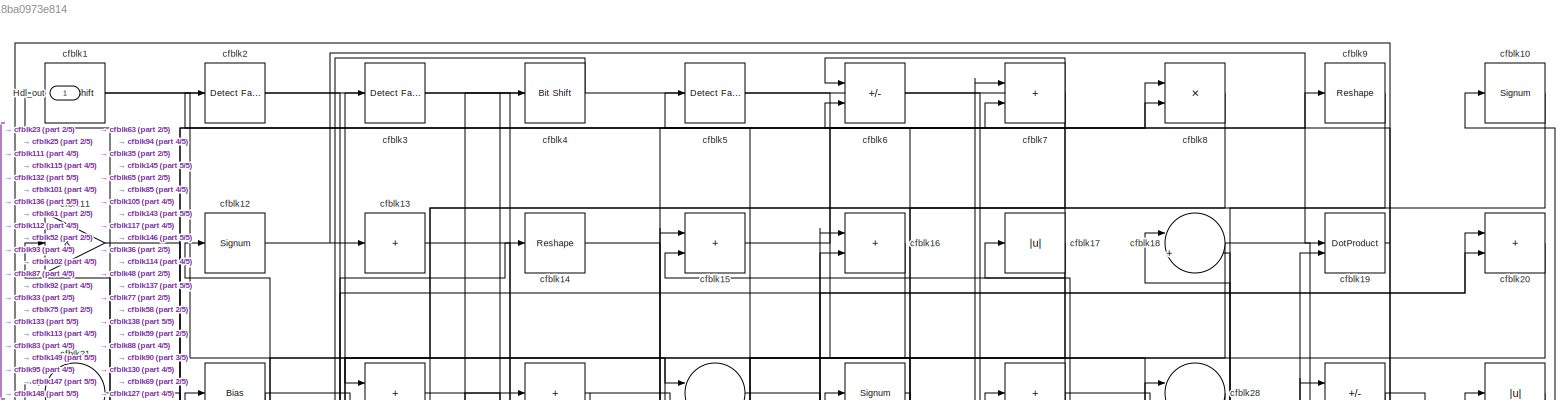
[diagram: root canvas - part 1/5, full width, top band]
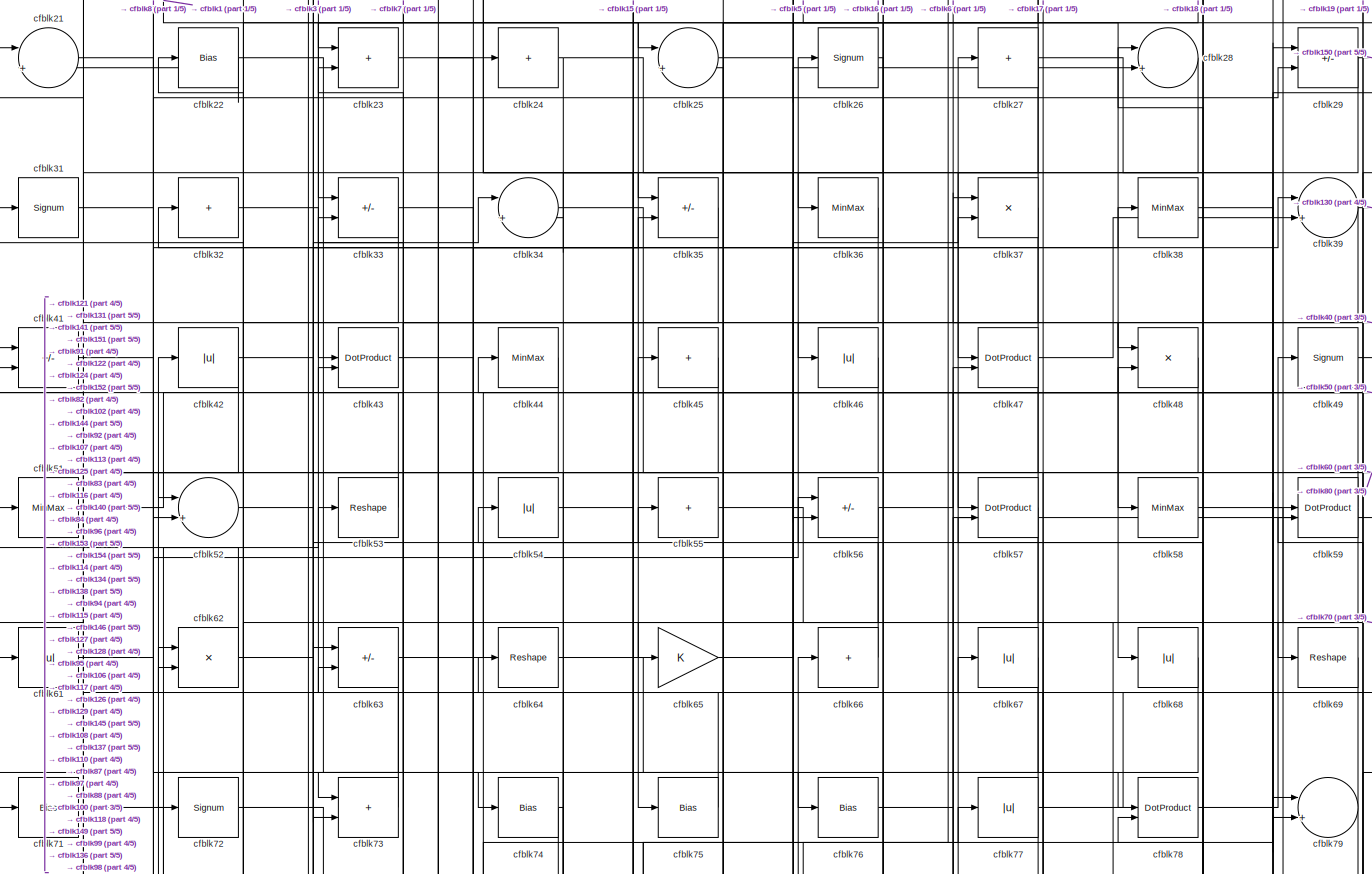
[diagram: root canvas - part 2/5, full width, top band]
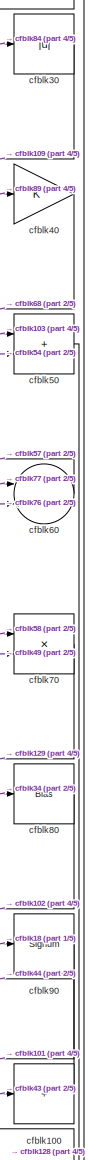
[diagram: root canvas - part 3/5, middle right region]
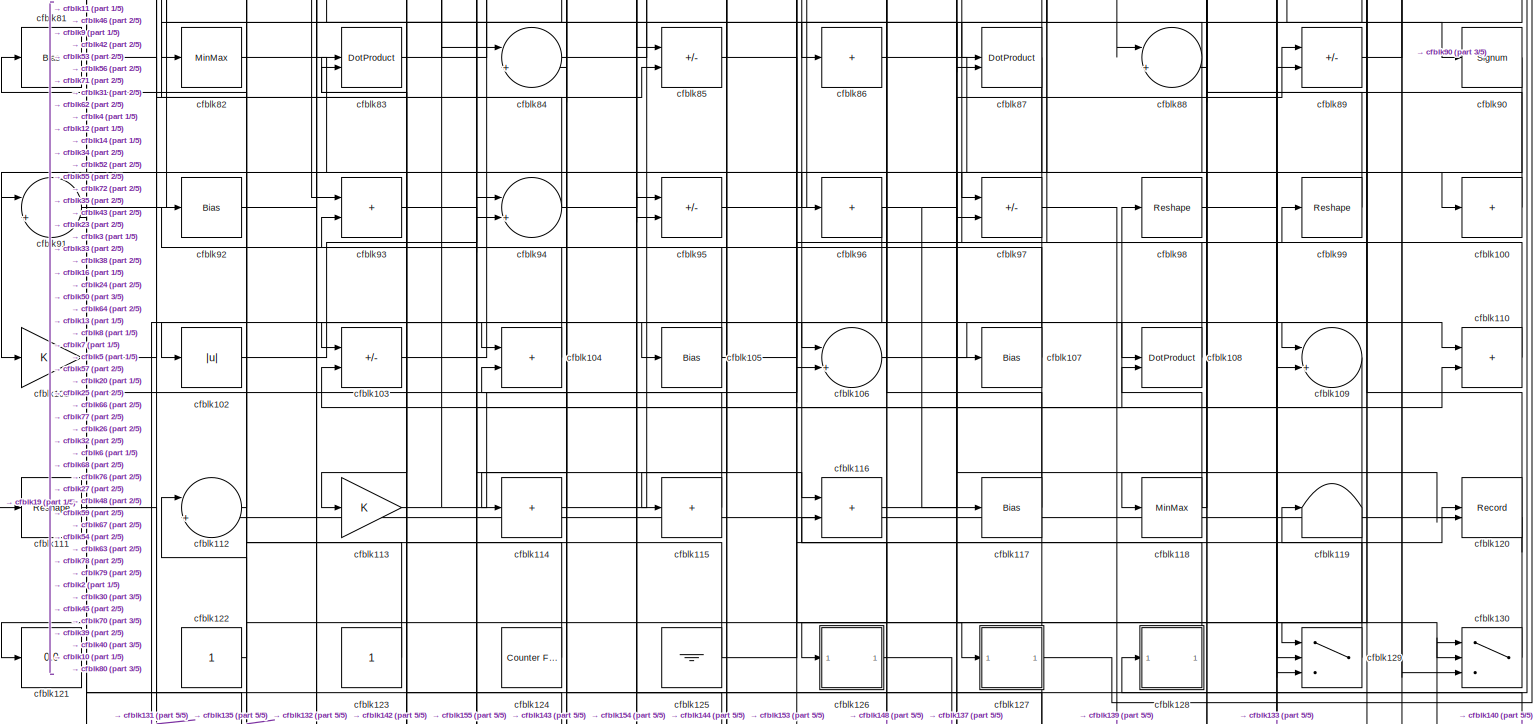
[diagram: root canvas - part 4/5, full width, middle band]
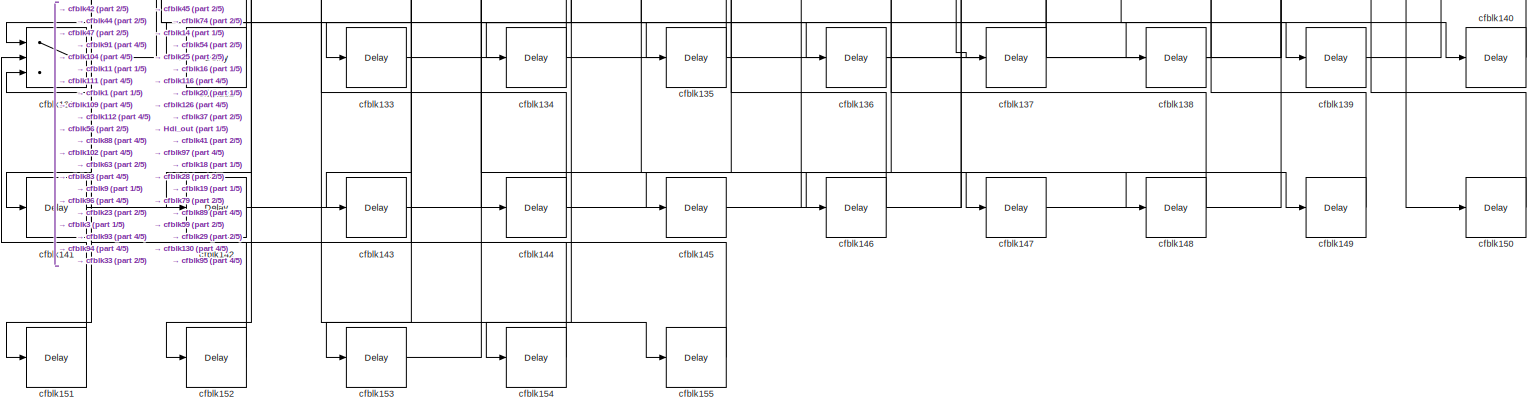
[diagram: root canvas - part 5/5, full width, bottom band]
MODEL slx_18ba0973e814
KIND model
CONFIG AbsTol = auto
CONFIG EnableMultiTasking = off
CONFIG FixedStep = auto
CONFIG MaxStep = auto
CONFIG MinStep = auto
CONFIG RelTol = 1e-3
CONFIG SampleTimeConstraint = Unconstrained
CONFIG SolverName = VariableStepAuto
CONFIG StartTime = 0.0
CONFIG StopTime = 10.0
BLOCK [Outport] Hdl_out
  OutDataTypeStr = uint8
BLOCK [ArithShift] cfblk1
  BitShiftNumber = 8
  InputPortMap = u0
BLOCK [Signum] cfblk10
BLOCK [Sum] cfblk100
  IconShape = rectangular
  Inputs = +
  OutDataTypeStr = uint8
BLOCK [Gain] cfblk101
  OutDataTypeStr = uint8
BLOCK [Abs] cfblk102
  OutDataTypeStr = uint8
  SaturateOnIntegerOverflow = off
BLOCK [Sum] cfblk103
  IconShape = rectangular
  Inputs = +-
  OutDataTypeStr = uint8
BLOCK [Sum] cfblk104
  IconShape = rectangular
  OutDataTypeStr = uint8
BLOCK [Bias] cfblk105
  Bias = 0.0
  SaturateOnIntegerOverflow = off
BLOCK [Sum] cfblk106
  Inputs = |++
  OutDataTypeStr = uint8
BLOCK [Bias] cfblk107
  Bias = 0.0
  SaturateOnIntegerOverflow = off
BLOCK [DotProduct] cfblk108
  OutDataTypeStr = uint8
BLOCK [Sum] cfblk109
  Inputs = |++
  OutDataTypeStr = uint8
BLOCK [Gain] cfblk11
  OutDataTypeStr = uint8
BLOCK [Sum] cfblk110
  IconShape = rectangular
  OutDataTypeStr = uint8
BLOCK [Reshape] cfblk111
BLOCK [Sum] cfblk112
  Inputs = |++
  OutDataTypeStr = uint8
BLOCK [Gain] cfblk113
  OutDataTypeStr = uint8
BLOCK [Sum] cfblk114
  IconShape = rectangular
  Inputs = +
  OutDataTypeStr = uint8
BLOCK [Sum] cfblk115
  IconShape = rectangular
  Inputs = +
  OutDataTypeStr = uint8
BLOCK [Sum] cfblk116
  IconShape = rectangular
  OutDataTypeStr = uint8
BLOCK [Bias] cfblk117
  Bias = 0.0
  SaturateOnIntegerOverflow = off
BLOCK [MinMax] cfblk118
  OutDataTypeStr = uint8
BLOCK [Terminator] cfblk119
BLOCK [Signum] cfblk12
BLOCK [Record] cfblk120
  CompatibilityTag = XY
  FileSettingsInternal = {"entries":[{"content":{"excelSettings":{"content":{},"type":"Streamout.ExcelSettings"}},"type":"Streamout.FileSettingStorage","uuid":""}],"packageUris":["http:\/\/schema.mathworks.com\/mf0\/streamout_blocks\/R2020a"],"version":"1.0"}
  Layout = [1 1]
  SignalsInternal = {"entries":[{"content":{"signals":[{"content":{"blockPath":[],"dimensions":[1],"domain":"","lineColor":"#a2142f","plots":[1],"port":1,"signalID":59982,"signalName":"cfblk125"},"type":"RecordBlkView.Signal","uuid":""},{"content":{"blockPath":[],"dimensions":[1],"domain":"","lineColor":"#139fff","plots":[1],"port":2,"signalID":59985,"signalName":"cfblk96"},"type":"RecordBlkView.Signal","uuid":""}]},...<+143ch>
  VisualizationBindings = {"xyplotplugin":{"info":[{"series":[{"bindingParametersList":[{"parameter":"X-Axis","signalID":59982,"signalName":"cfblk125"},{"parameter":"Y-Axis","signalID":59985,"signalName":"cfblk96"}],"seriesID":18060}],"subplotID":1}]}}
  st = -1
BLOCK [Display] cfblk121
  Decimation = 1
BLOCK [Constant] cfblk122
  OutDataTypeStr = uint8
  SampleTime = -1
BLOCK [Constant] cfblk123
  OutDataTypeStr = uint8
  SampleTime = -1
BLOCK [Reference] cfblk124  REF=hdlsllib/Sources/Counter
Free-Running
  SourceBlock = hdlsllib/Sources/Counter\nFree-Running
  SourceType = Counter Free-Running
BLOCK [Ground] cfblk125
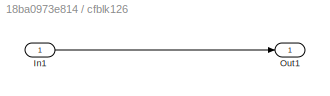
BLOCK [SubSystem] cfblk126
  LibrarySourceBlock = hdlsllib/Ports &\nSubsystems/Subsystem
BLOCK [Inport] cfblk126/In1
BLOCK [Outport] cfblk126/Out1
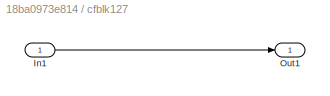
BLOCK [SubSystem] cfblk127
  LibrarySourceBlock = hdlsllib/Ports &\nSubsystems/Subsystem
BLOCK [Inport] cfblk127/In1
BLOCK [Outport] cfblk127/Out1
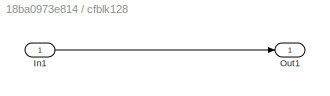
BLOCK [SubSystem] cfblk128
  LibrarySourceBlock = hdlsllib/Ports &\nSubsystems/Subsystem
BLOCK [Inport] cfblk128/In1
BLOCK [Outport] cfblk128/Out1
BLOCK [Switch] cfblk129
  InputSameDT = off
  OutDataTypeStr = uint8
  SaturateOnIntegerOverflow = off
BLOCK [Sum] cfblk13
  IconShape = rectangular
  Inputs = +
  OutDataTypeStr = uint8
BLOCK [Switch] cfblk130
  InputSameDT = off
  OutDataTypeStr = uint8
  SaturateOnIntegerOverflow = off
BLOCK [Switch] cfblk131
  InputSameDT = off
  OutDataTypeStr = uint8
  SaturateOnIntegerOverflow = off
BLOCK [Delay] cfblk132
  InputPortMap = u0
  SampleTime = 1
BLOCK [Delay] cfblk133
  InputPortMap = u0
  SampleTime = 1
BLOCK [Delay] cfblk134
  InputPortMap = u0
  SampleTime = 1
BLOCK [Delay] cfblk135
  InputPortMap = u0
  SampleTime = 1
BLOCK [Delay] cfblk136
  InputPortMap = u0
  SampleTime = 1
BLOCK [Delay] cfblk137
  InputPortMap = u0
  SampleTime = 1
BLOCK [Delay] cfblk138
  InputPortMap = u0
  SampleTime = 1
BLOCK [Delay] cfblk139
  InputPortMap = u0
  SampleTime = 1
BLOCK [Reshape] cfblk14
BLOCK [Delay] cfblk140
  InputPortMap = u0
  SampleTime = 1
BLOCK [Delay] cfblk141
  InputPortMap = u0
  SampleTime = 1
BLOCK [Delay] cfblk142
  InputPortMap = u0
  SampleTime = 1
BLOCK [Delay] cfblk143
  InputPortMap = u0
  SampleTime = 1
BLOCK [Delay] cfblk144
  InputPortMap = u0
  SampleTime = 1
BLOCK [Delay] cfblk145
  InputPortMap = u0
  SampleTime = 1
BLOCK [Delay] cfblk146
  InputPortMap = u0
  SampleTime = 1
BLOCK [Delay] cfblk147
  InputPortMap = u0
  SampleTime = 1
BLOCK [Delay] cfblk148
  InputPortMap = u0
  SampleTime = 1
BLOCK [Delay] cfblk149
  InputPortMap = u0
  SampleTime = 1
BLOCK [Sum] cfblk15
  IconShape = rectangular
  OutDataTypeStr = uint8
BLOCK [Delay] cfblk150
  InputPortMap = u0
  SampleTime = 1
BLOCK [Delay] cfblk151
  InputPortMap = u0
  SampleTime = 1
BLOCK [Delay] cfblk152
  InputPortMap = u0
  SampleTime = 1
BLOCK [Delay] cfblk153
  InputPortMap = u0
  SampleTime = 1
BLOCK [Delay] cfblk154
  InputPortMap = u0
  SampleTime = 1
BLOCK [Delay] cfblk155
  InputPortMap = u0
  SampleTime = 1
BLOCK [Sum] cfblk16
  IconShape = rectangular
  OutDataTypeStr = uint8
BLOCK [Abs] cfblk17
  OutDataTypeStr = uint8
  SaturateOnIntegerOverflow = off
BLOCK [Sum] cfblk18
  Inputs = |++
  OutDataTypeStr = uint8
BLOCK [DotProduct] cfblk19
  OutDataTypeStr = uint8
BLOCK [Reference] cfblk2  REF=hdlsllib/Logic and Bit
Operations/Detect Fall
Nonpositive
  SourceBlock = hdlsllib/Logic and Bit\nOperations/Detect Fall\nNonpositive
  SourceType = Detect Fall Nonpositive
BLOCK [Sum] cfblk20
  IconShape = rectangular
  OutDataTypeStr = uint8
BLOCK [Sum] cfblk21
  Inputs = |++
  OutDataTypeStr = uint8
BLOCK [Bias] cfblk22
  Bias = 0.0
  SaturateOnIntegerOverflow = off
BLOCK [Sum] cfblk23
  IconShape = rectangular
  OutDataTypeStr = uint8
BLOCK [Sum] cfblk24
  IconShape = rectangular
  Inputs = +
  OutDataTypeStr = uint8
BLOCK [Sum] cfblk25
  Inputs = |++
  OutDataTypeStr = uint8
BLOCK [Signum] cfblk26
BLOCK [Sum] cfblk27
  IconShape = rectangular
  Inputs = +
  OutDataTypeStr = uint8
BLOCK [Sum] cfblk28
  Inputs = |++
  OutDataTypeStr = uint8
BLOCK [Sum] cfblk29
  IconShape = rectangular
  Inputs = +-
  OutDataTypeStr = uint8
BLOCK [Reference] cfblk3  REF=hdlsllib/Logic and Bit
Operations/Detect Fall
Negative
  SourceBlock = hdlsllib/Logic and Bit\nOperations/Detect Fall\nNegative
  SourceType = Detect Fall Negative
BLOCK [Abs] cfblk30
  OutDataTypeStr = uint8
  SaturateOnIntegerOverflow = off
BLOCK [Signum] cfblk31
BLOCK [Sum] cfblk32
  IconShape = rectangular
  Inputs = +
  OutDataTypeStr = uint8
BLOCK [Sum] cfblk33
  IconShape = rectangular
  Inputs = +-
  OutDataTypeStr = uint8
BLOCK [Sum] cfblk34
  Inputs = |++
  OutDataTypeStr = uint8
BLOCK [Sum] cfblk35
  IconShape = rectangular
  Inputs = +-
  OutDataTypeStr = uint8
BLOCK [MinMax] cfblk36
  OutDataTypeStr = uint8
BLOCK [Product] cfblk37
  Inputs = */
  OutDataTypeStr = uint8
  RndMeth = Zero
  SaturateOnIntegerOverflow = on
BLOCK [MinMax] cfblk38
  OutDataTypeStr = uint8
BLOCK [Sum] cfblk39
  Inputs = |++
  OutDataTypeStr = uint8
BLOCK [Reference] cfblk4  REF=hdlsllib/Logic and Bit
Operations/Bit Shift
  SourceBlock = hdlsllib/Logic and Bit\nOperations/Bit Shift
  SourceType = Bit Shift
BLOCK [Gain] cfblk40
  OutDataTypeStr = uint8
BLOCK [Sum] cfblk41
  IconShape = rectangular
  Inputs = +-
  OutDataTypeStr = uint8
BLOCK [Abs] cfblk42
  OutDataTypeStr = uint8
  SaturateOnIntegerOverflow = off
BLOCK [DotProduct] cfblk43
  OutDataTypeStr = uint8
BLOCK [MinMax] cfblk44
  OutDataTypeStr = uint8
BLOCK [Sum] cfblk45
  IconShape = rectangular
  Inputs = +
  OutDataTypeStr = uint8
BLOCK [Abs] cfblk46
  OutDataTypeStr = uint8
  SaturateOnIntegerOverflow = off
BLOCK [DotProduct] cfblk47
  OutDataTypeStr = uint8
BLOCK [Product] cfblk48
  Inputs = */
  OutDataTypeStr = uint8
  RndMeth = Zero
  SaturateOnIntegerOverflow = on
BLOCK [Signum] cfblk49
BLOCK [Reference] cfblk5  REF=hdlsllib/Logic and Bit
Operations/Detect Fall
Nonpositive
  SourceBlock = hdlsllib/Logic and Bit\nOperations/Detect Fall\nNonpositive
  SourceType = Detect Fall Nonpositive
BLOCK [Sum] cfblk50
  IconShape = rectangular
  OutDataTypeStr = uint8
BLOCK [MinMax] cfblk51
  OutDataTypeStr = uint8
BLOCK [Sum] cfblk52
  Inputs = |++
  OutDataTypeStr = uint8
BLOCK [Reshape] cfblk53
BLOCK [Abs] cfblk54
  OutDataTypeStr = uint8
  SaturateOnIntegerOverflow = off
BLOCK [Sum] cfblk55
  IconShape = rectangular
  Inputs = +
  OutDataTypeStr = uint8
BLOCK [Sum] cfblk56
  IconShape = rectangular
  Inputs = +-
  OutDataTypeStr = uint8
BLOCK [DotProduct] cfblk57
  OutDataTypeStr = uint8
BLOCK [MinMax] cfblk58
  OutDataTypeStr = uint8
BLOCK [DotProduct] cfblk59
  OutDataTypeStr = uint8
BLOCK [Sum] cfblk6
  IconShape = rectangular
  Inputs = +-
  OutDataTypeStr = uint8
BLOCK [Sum] cfblk60
  Inputs = |++
  OutDataTypeStr = uint8
BLOCK [Abs] cfblk61
  OutDataTypeStr = uint8
  SaturateOnIntegerOverflow = off
BLOCK [Product] cfblk62
  Inputs = */
  OutDataTypeStr = uint8
  RndMeth = Zero
  SaturateOnIntegerOverflow = on
BLOCK [Sum] cfblk63
  IconShape = rectangular
  Inputs = +-
  OutDataTypeStr = uint8
BLOCK [Reshape] cfblk64
BLOCK [Gain] cfblk65
  OutDataTypeStr = uint8
BLOCK [Sum] cfblk66
  IconShape = rectangular
  Inputs = +
  OutDataTypeStr = uint8
BLOCK [Abs] cfblk67
  OutDataTypeStr = uint8
  SaturateOnIntegerOverflow = off
BLOCK [Abs] cfblk68
  OutDataTypeStr = uint8
  SaturateOnIntegerOverflow = off
BLOCK [Reshape] cfblk69
BLOCK [Sum] cfblk7
  IconShape = rectangular
  OutDataTypeStr = uint8
BLOCK [Product] cfblk70
  Inputs = */
  OutDataTypeStr = uint8
  RndMeth = Zero
  SaturateOnIntegerOverflow = on
BLOCK [Bias] cfblk71
  Bias = 0.0
  SaturateOnIntegerOverflow = off
BLOCK [Signum] cfblk72
BLOCK [Sum] cfblk73
  IconShape = rectangular
  OutDataTypeStr = uint8
BLOCK [Bias] cfblk74
  Bias = 0.0
  SaturateOnIntegerOverflow = off
BLOCK [Bias] cfblk75
  Bias = 0.0
  SaturateOnIntegerOverflow = off
BLOCK [Bias] cfblk76
  Bias = 0.0
  SaturateOnIntegerOverflow = off
BLOCK [Abs] cfblk77
  OutDataTypeStr = uint8
  SaturateOnIntegerOverflow = off
BLOCK [DotProduct] cfblk78
  OutDataTypeStr = uint8
BLOCK [Sum] cfblk79
  Inputs = |++
  OutDataTypeStr = uint8
BLOCK [Product] cfblk8
  Inputs = */
  OutDataTypeStr = uint8
  RndMeth = Zero
  SaturateOnIntegerOverflow = on
BLOCK [Bias] cfblk80
  Bias = 0.0
  SaturateOnIntegerOverflow = off
BLOCK [Bias] cfblk81
  Bias = 0.0
  SaturateOnIntegerOverflow = off
BLOCK [MinMax] cfblk82
  OutDataTypeStr = uint8
BLOCK [DotProduct] cfblk83
  OutDataTypeStr = uint8
BLOCK [Sum] cfblk84
  Inputs = |++
  OutDataTypeStr = uint8
BLOCK [Sum] cfblk85
  IconShape = rectangular
  Inputs = +-
  OutDataTypeStr = uint8
BLOCK [Sum] cfblk86
  IconShape = rectangular
  Inputs = +
  OutDataTypeStr = uint8
BLOCK [DotProduct] cfblk87
  OutDataTypeStr = uint8
BLOCK [Sum] cfblk88
  Inputs = |++
  OutDataTypeStr = uint8
BLOCK [Sum] cfblk89
  IconShape = rectangular
  Inputs = +-
  OutDataTypeStr = uint8
BLOCK [Reshape] cfblk9
BLOCK [Signum] cfblk90
BLOCK [Sum] cfblk91
  Inputs = |++
  OutDataTypeStr = uint8
BLOCK [Bias] cfblk92
  Bias = 0.0
  SaturateOnIntegerOverflow = off
BLOCK [Sum] cfblk93
  IconShape = rectangular
  OutDataTypeStr = uint8
BLOCK [Sum] cfblk94
  Inputs = |++
  OutDataTypeStr = uint8
BLOCK [Sum] cfblk95
  IconShape = rectangular
  Inputs = +-
  OutDataTypeStr = uint8
BLOCK [Sum] cfblk96
  IconShape = rectangular
  Inputs = +
  OutDataTypeStr = uint8
BLOCK [Sum] cfblk97
  IconShape = rectangular
  Inputs = +-
  OutDataTypeStr = uint8
BLOCK [Reshape] cfblk98
BLOCK [Reshape] cfblk99
NET cfblk100:1 -> cfblk44:1, cfblk57:2
LINE cfblk101:1 -> cfblk9:1
NET cfblk102:1 -> cfblk155:1, cfblk20:2, cfblk38:1
LINE cfblk103:1 -> cfblk50:1
LINE cfblk104:1 -> cfblk83:1
NET cfblk105:1 -> cfblk20:1, cfblk93:2
LINE cfblk106:1 -> cfblk108:1
LINE cfblk107:1 -> cfblk92:1
LINE cfblk108:1 -> cfblk27:1
NET cfblk109:1 -> cfblk103:2, cfblk142:1
LINE cfblk10:1 -> cfblk88:2
LINE cfblk110:1 -> cfblk67:1
LINE cfblk111:1 -> cfblk135:1
LINE cfblk112:1 -> cfblk12:1
NET cfblk113:1 -> cfblk110:2, cfblk4:1, cfblk99:1
NET cfblk114:1 -> cfblk64:1, cfblk7:1
LINE cfblk115:1 -> cfblk11:1
LINE cfblk116:1 -> cfblk89:1
NET cfblk117:1 -> cfblk32:1, cfblk6:2
NET cfblk118:1 -> cfblk78:2, cfblk98:1
LINE cfblk11:1 -> cfblk136:1
LINE cfblk122:1 -> cfblk62:1
LINE cfblk123:1 -> cfblk81:1
LINE cfblk124:1 -> cfblk31:1
NET cfblk125:1 -> cfblk108:2, cfblk120:1, cfblk43:2
LINE cfblk126/In1:1 -> cfblk126/Out1:1
LINE cfblk126:1 -> cfblk137:1
LINE cfblk127/In1:1 -> cfblk127/Out1:1
LINE cfblk127:1 -> cfblk10:1
LINE cfblk128/In1:1 -> cfblk128/Out1:1
LINE cfblk128:1 -> cfblk66:1
LINE cfblk129:1 -> cfblk119:1
NET cfblk12:1 -> cfblk19:1, cfblk87:2
NET cfblk130:1 -> cfblk112:2, cfblk2:1, cfblk45:1
LINE cfblk131:1 -> cfblk104:1
LINE cfblk132:1 -> cfblk1:1
LINE cfblk133:1 -> cfblk89:2
LINE cfblk134:1 -> cfblk33:2
LINE cfblk135:1 -> cfblk104:2
LINE cfblk136:1 -> cfblk79:1
NET cfblk137:1 -> Hdl_out:1, cfblk41:2
LINE cfblk138:1 -> cfblk18:2
LINE cfblk139:1 -> cfblk130:1
LINE cfblk13:1 -> cfblk85:1
LINE cfblk140:1 -> cfblk95:1
LINE cfblk141:1 -> cfblk37:1
LINE cfblk142:1 -> cfblk112:1
LINE cfblk143:1 -> cfblk16:2
LINE cfblk144:1 -> cfblk63:1
LINE cfblk145:1 -> cfblk47:2
LINE cfblk146:1 -> cfblk25:2
LINE cfblk147:1 -> cfblk19:2
LINE cfblk148:1 -> cfblk116:2
LINE cfblk149:1 -> cfblk28:1
NET cfblk14:1 -> cfblk147:1, cfblk148:1
LINE cfblk150:1 -> cfblk59:2
LINE cfblk151:1 -> cfblk131:2
LINE cfblk152:1 -> cfblk131:3
LINE cfblk153:1 -> cfblk94:1
LINE cfblk154:1 -> cfblk83:2
LINE cfblk155:1 -> cfblk91:2
LINE cfblk15:1 -> cfblk7:2
LINE cfblk16:1 -> cfblk33:1
NET cfblk17:1 -> cfblk15:2, cfblk35:1, cfblk52:1
NET cfblk18:1 -> cfblk65:1, cfblk90:1
NET cfblk19:1 -> cfblk111:1, cfblk69:1
LINE cfblk1:1 -> cfblk25:1
NET cfblk20:1 -> cfblk145:1, cfblk146:1
LINE cfblk21:1 -> cfblk74:1
NET cfblk22:1 -> cfblk21:2, cfblk76:1
NET cfblk23:1 -> cfblk140:1, cfblk96:1
NET cfblk24:1 -> cfblk106:2, cfblk34:2
NET cfblk25:1 -> cfblk127:1, cfblk28:2
LINE cfblk26:1 -> cfblk126:1
NET cfblk27:1 -> cfblk79:2, cfblk84:2
LINE cfblk28:1 -> cfblk47:1
NET cfblk29:1 -> cfblk150:1, cfblk71:1, cfblk75:1
LINE cfblk2:1 -> cfblk13:1
LINE cfblk30:1 -> cfblk109:1
LINE cfblk31:1 -> cfblk29:2
LINE cfblk32:1 -> cfblk43:1
NET cfblk33:1 -> cfblk116:1, cfblk61:1
LINE cfblk34:1 -> cfblk80:1
LINE cfblk35:1 -> cfblk113:1
LINE cfblk36:1 -> cfblk73:1
LINE cfblk37:1 -> cfblk46:1
LINE cfblk38:1 -> cfblk130:2
NET cfblk39:1 -> cfblk130:3, cfblk73:2, cfblk82:1
NET cfblk3:1 -> cfblk149:1, cfblk95:2
LINE cfblk40:1 -> cfblk68:1
NET cfblk41:1 -> cfblk39:1, cfblk52:2
NET cfblk42:1 -> cfblk151:1, cfblk56:2
NET cfblk43:1 -> cfblk100:1, cfblk84:1
LINE cfblk44:1 -> cfblk141:1
LINE cfblk45:1 -> cfblk134:1
NET cfblk46:1 -> cfblk121:1, cfblk91:1
NET cfblk47:1 -> cfblk131:1, cfblk39:2
LINE cfblk48:1 -> cfblk97:1
LINE cfblk49:1 -> cfblk70:2
LINE cfblk4:1 -> cfblk93:1
LINE cfblk50:1 -> cfblk128:1
LINE cfblk51:1 -> cfblk29:1
LINE cfblk52:1 -> cfblk110:1
LINE cfblk53:1 -> cfblk41:1
NET cfblk54:1 -> cfblk138:1, cfblk50:2
LINE cfblk55:1 -> cfblk88:1
NET cfblk56:1 -> cfblk152:1, cfblk48:2
LINE cfblk57:1 -> cfblk115:1
LINE cfblk58:1 -> cfblk70:1
NET cfblk59:1 -> cfblk18:1, cfblk87:1
LINE cfblk5:1 -> cfblk58:1
LINE cfblk60:1 -> cfblk57:1
LINE cfblk61:1 -> cfblk8:1
NET cfblk62:1 -> cfblk35:2, cfblk51:1
NET cfblk63:1 -> cfblk15:1, cfblk72:1
LINE cfblk64:1 -> cfblk78:1
LINE cfblk65:1 -> cfblk37:2
LINE cfblk66:1 -> cfblk26:1
LINE cfblk67:1 -> cfblk114:1
LINE cfblk68:1 -> cfblk106:1
LINE cfblk69:1 -> cfblk62:2
LINE cfblk6:1 -> cfblk48:1
LINE cfblk70:1 -> cfblk129:1
LINE cfblk71:1 -> cfblk94:2
LINE cfblk72:1 -> cfblk107:1
LINE cfblk73:1 -> cfblk22:1
NET cfblk74:1 -> cfblk153:1, cfblk154:1
NET cfblk75:1 -> cfblk23:2, cfblk3:1
NET cfblk76:1 -> cfblk129:2, cfblk60:2
NET cfblk77:1 -> cfblk17:1, cfblk60:1
LINE cfblk78:1 -> cfblk49:1
NET cfblk79:1 -> cfblk118:1, cfblk21:1
NET cfblk7:1 -> cfblk23:1, cfblk6:1
LINE cfblk80:1 -> cfblk102:1
LINE cfblk81:1 -> cfblk85:2
NET cfblk82:1 -> cfblk109:2, cfblk34:1
NET cfblk83:1 -> cfblk16:1, cfblk24:1
LINE cfblk84:1 -> cfblk30:1
NET cfblk85:1 -> cfblk5:1, cfblk97:2
LINE cfblk86:1 -> cfblk129:3
LINE cfblk87:1 -> cfblk103:1
NET cfblk88:1 -> cfblk132:1, cfblk86:1
LINE cfblk89:1 -> cfblk40:1
LINE cfblk8:1 -> cfblk36:1
LINE cfblk90:1 -> cfblk101:1
NET cfblk91:1 -> cfblk53:1, cfblk56:1
NET cfblk92:1 -> cfblk14:1, cfblk55:1
LINE cfblk93:1 -> cfblk144:1
NET cfblk94:1 -> cfblk42:1, cfblk8:2
LINE cfblk95:1 -> cfblk77:1
NET cfblk96:1 -> cfblk105:1, cfblk117:1, cfblk120:2, cfblk143:1
LINE cfblk97:1 -> cfblk139:1
LINE cfblk98:1 -> cfblk59:1
NET cfblk99:1 -> cfblk54:1, cfblk63:2
LINE cfblk9:1 -> cfblk133:1
note: NET lines group one-source signal fan-out (src -> all destinations, sorted); 1:1 wires keep LINE
